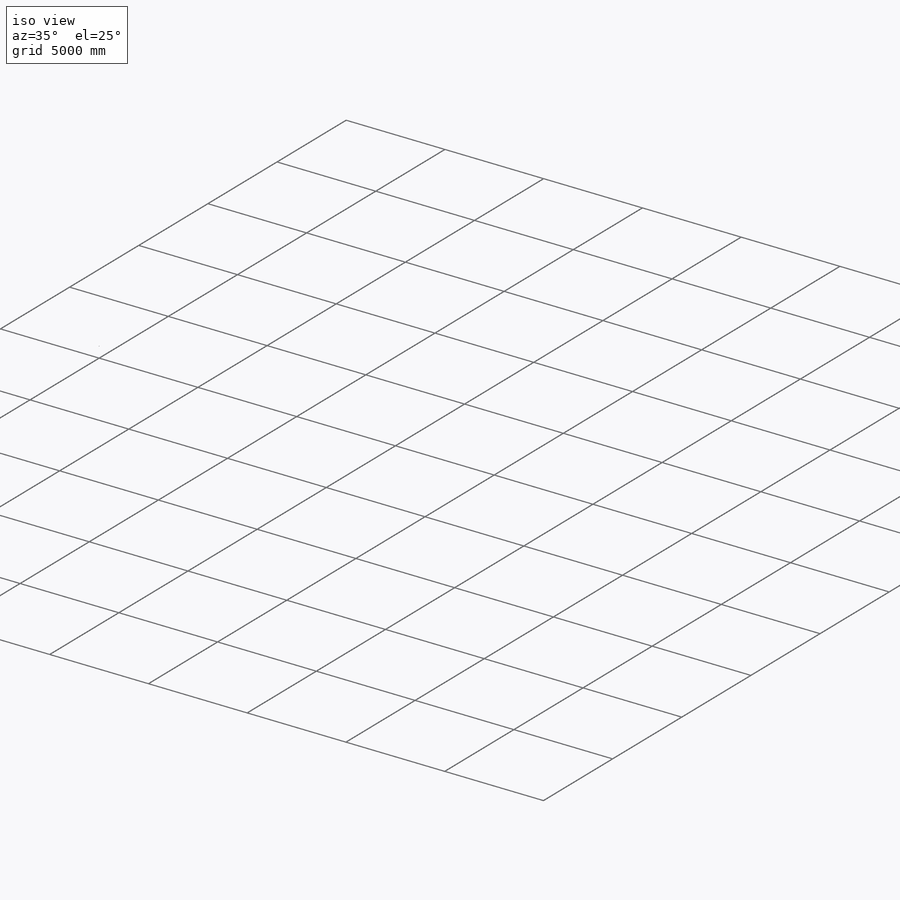
[diagram: iso view]
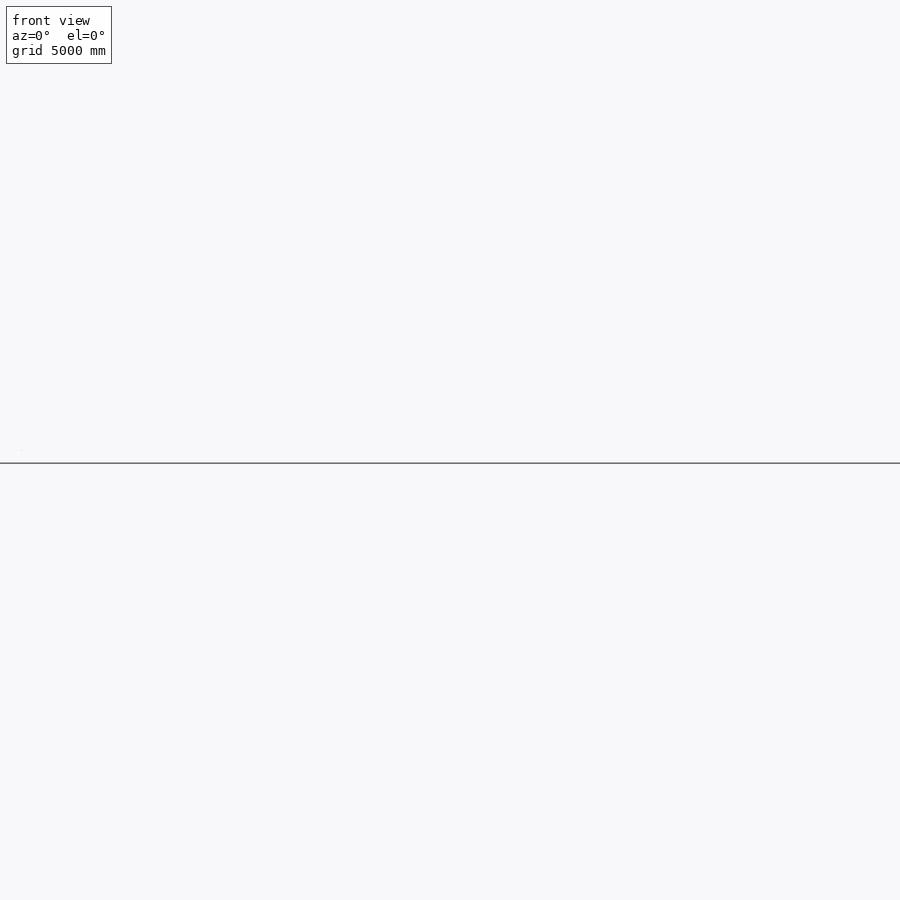
[diagram: front view]
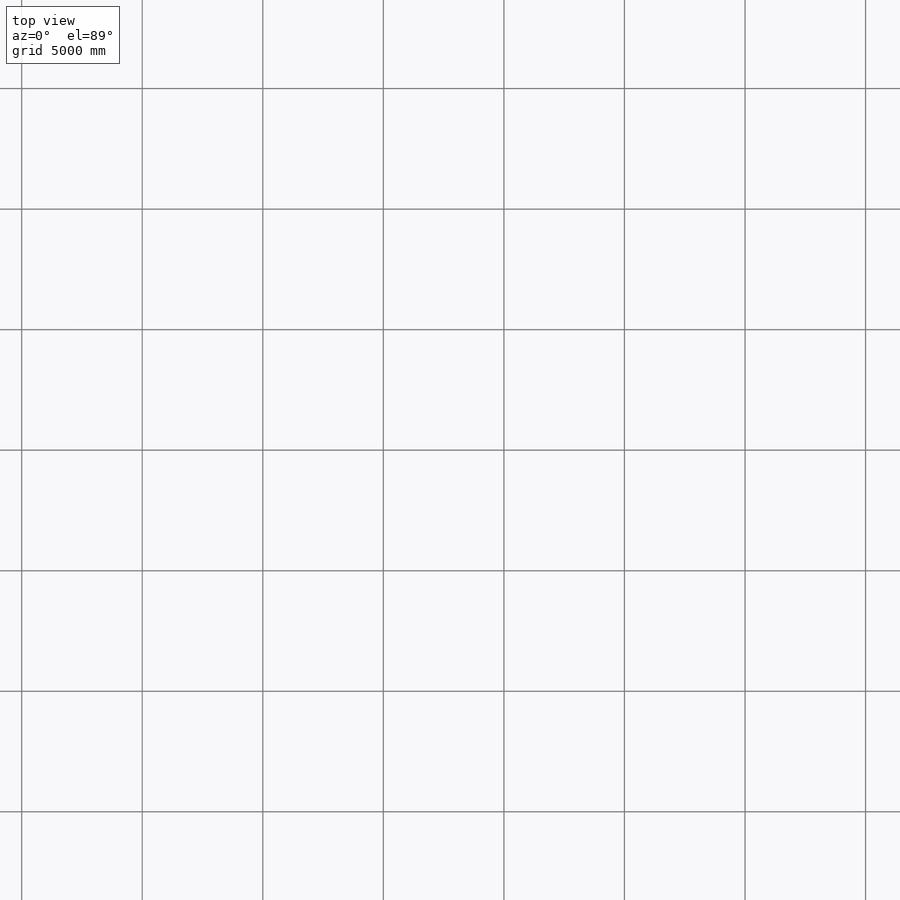
[diagram: top view]
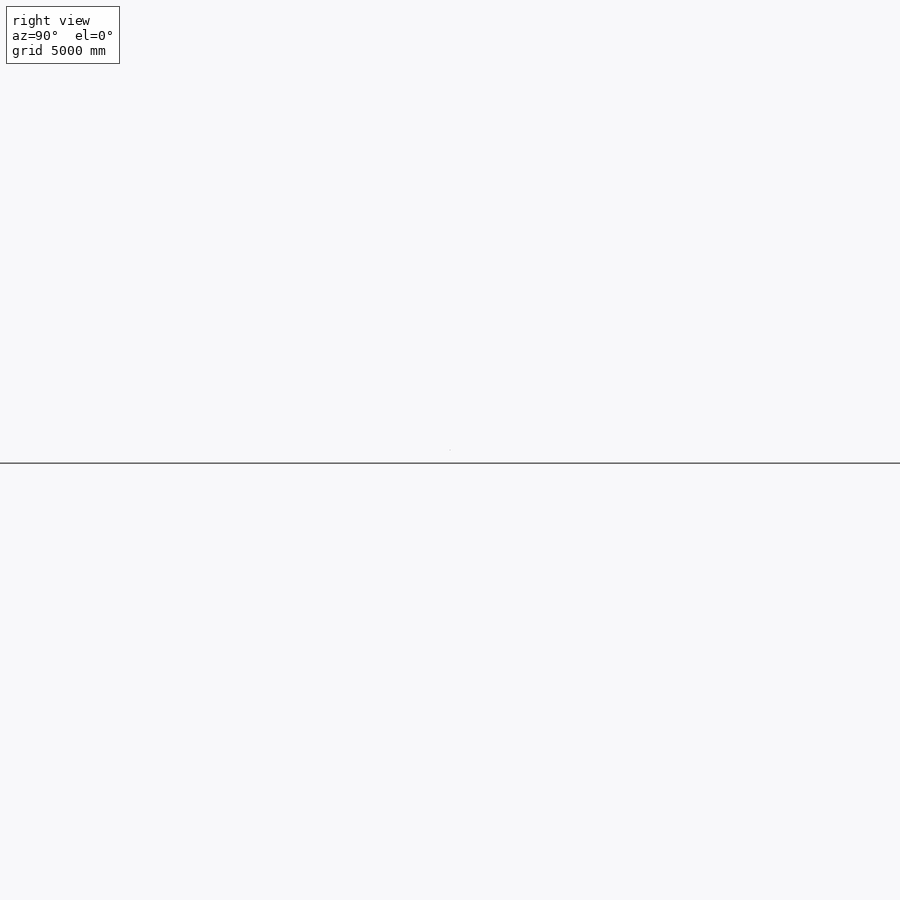
[diagram: right view]
SOLIDWORKS PART (.sldprt)
format: sldprt  version: not decoded by parser v0  size: 378,368 bytes
history: native  units: mm
features: sketch x13, revolve x10, material x1 + 2 further entries (+14 scaffold rows collapsed)
feature tree (40):
  scaffold x14  (default folders/planes/origin — collapsed)
  material  "Material <not specified>"
  "Origin"  cosmosAttributesReplaced=1
  "cosmosAttributesReplaced"  cosmosVersionNumber=0
  sketch  "Sketch1"  dims[D1=~21.96846mm]
  revolve  "Revolve-Sun"  Angle=360deg
  sketch  "Sketch10"  dims[D1=~913.968708mm D2=~0.078715mm]
  revolve  "Revolve-Mercury"  Angle=360deg
  sketch  "Sketch9"  dims[D1=~1707.846978mm D2=~0.191033mm]
  revolve  "Revolve-Venus"  Angle=360deg
  sketch  "Sketch7"  dims[D1=~2361.08367mm D2=~0.201117mm]
  revolve  "Revolve-Earth"  Angle=360deg
  sketch  "Sketch8"  dims[D1=~6.066917mm D2=~0.054839mm]
  revolve  "Revolve-Moon"  Angle=360deg
  sketch  "Sketch6"  dims[D1=~3597.52392mm D2=~0.106883mm]
  revolve  "Revolve-Mars"  Angle=360deg
  sketch  "Sketch5"  dims[D1=~12287.67672mm D2=~2.183486mm]
  revolve  "Revolve-Jupiter"  Angle=360deg
  sketch  "Sketch4"  dims[D1=~22623.88414mm D2=~1.809217mm]
  revolve  "Revolve-Saturn"  Angle=360deg
  sketch  "Sketch3"  dims[D1=45402.1444mm D2=~0.797535mm]
  revolve  "Revolve-Uranus"  Angle=360deg
  sketch  "Sketch2"  dims[D1=71076.82mm D2=~0.775005mm]
  revolve  "Revolve-Neptune"  Angle=360deg
  sketch  "Sketch-Orbits"
  sketch  "Sketch-Axes"
  sketch  "Sketch-Day & Night for Mercury, Earth, & Neptune"  dims[c1.D6=~21.96846mm c1.D1=~0.039357mm c2.D1=~177.255245deg c2.D2=~0.00075mm c3.D2=~178.943541deg c3.D3=~0.000114mm c3.D4=~454.419131mm c4.D4=~2.744755deg c4.D5=~1184.484371mm c5.D5=~1.056459deg c5.D6=~0.387502mm c6.D6=~179.965831deg]
decode coverage: 21 of 23 modeling features carry decoded parameters; 2 rows unclassified (native names shown)
note: ~ marks probable driven/reference dimensions
note: suppression state not decoded; provenance and decode notes live in map.json
